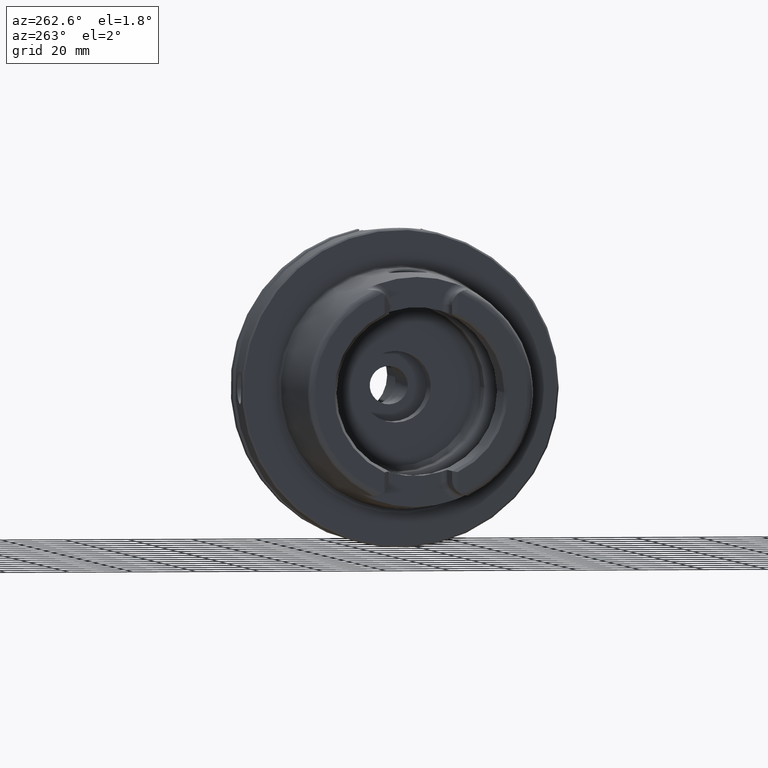
[diagram: clean part render]
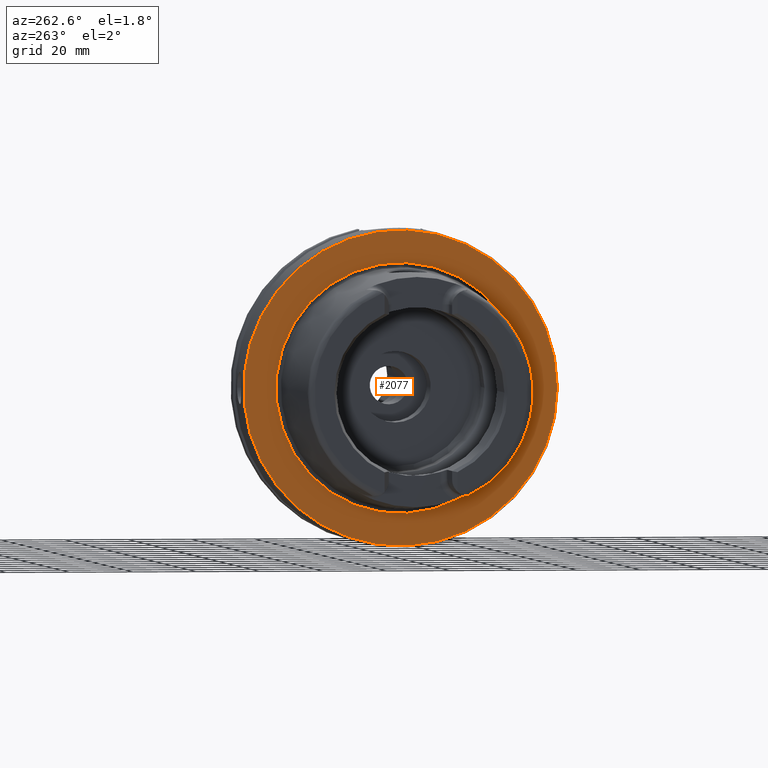
[diagram: same view with one face highlighted and labeled with its STEP entity id]
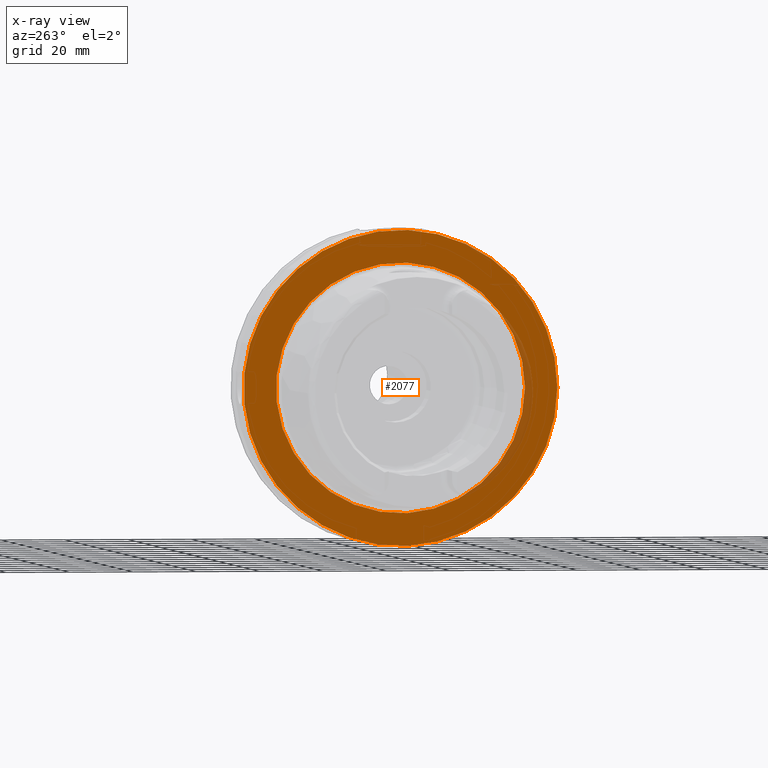
[diagram: x-ray of the same camera — body ghosted, the highlighted face saturated]
A machine part, auxiliary view. The second image highlights one B-rep face of the part: STEP entity #2077.
The next image is the same camera in x-ray: the body ghosted, the highlighted face saturated — about 5% of this face is hidden behind the body in this view.
In plain terms, the highlighted planar face has unit normal (-1, 0, 0).
Its self-contained STEP definition (entity closure, byte-faithful):
#97=FACE_BOUND('',#447,.T.);
#133=PLANE('',#2346);
#315=FACE_OUTER_BOUND('',#446,.T.);
#446=EDGE_LOOP('',(#1903));
#447=EDGE_LOOP('',(#1904));
#791=CIRCLE('',#2345,39.2747800249997);
#792=CIRCLE('',#2347,49.5);
#1003=VERTEX_POINT('',#4477);
#1004=VERTEX_POINT('',#4481);
#1308=EDGE_CURVE('',#1003,#1003,#791,.T.);
#1309=EDGE_CURVE('',#1004,#1004,#792,.T.);
#1903=ORIENTED_EDGE('',*,*,#1309,.F.);
#1904=ORIENTED_EDGE('',*,*,#1308,.T.);
#2077=ADVANCED_FACE('',(#315,#97),#133,.T.);
#2345=AXIS2_PLACEMENT_3D('',#4479,#2941,#2942);
#2346=AXIS2_PLACEMENT_3D('',#4480,#2943,#2944);
#2347=AXIS2_PLACEMENT_3D('',#4482,#2945,#2946);
#2941=DIRECTION('center_axis',(1.,0.,0.));
#2942=DIRECTION('ref_axis',(0.,0.,-1.));
#2943=DIRECTION('center_axis',(-1.,0.,0.));
#2944=DIRECTION('ref_axis',(0.,0.,1.));
#2945=DIRECTION('center_axis',(1.,0.,0.));
#2946=DIRECTION('ref_axis',(0.,0.,-1.));
#4477=CARTESIAN_POINT('',(-1.04950770296597E-15,-39.2747800249997,-4.80977336448322E-15));
#4479=CARTESIAN_POINT('Origin',(0.,0.,0.));
#4480=CARTESIAN_POINT('Origin',(0.,49.5,0.));
#4481=CARTESIAN_POINT('',(1.28369537222284E-15,-49.5,-6.0620016557794E-15));
#4482=CARTESIAN_POINT('Origin',(0.,0.,0.));